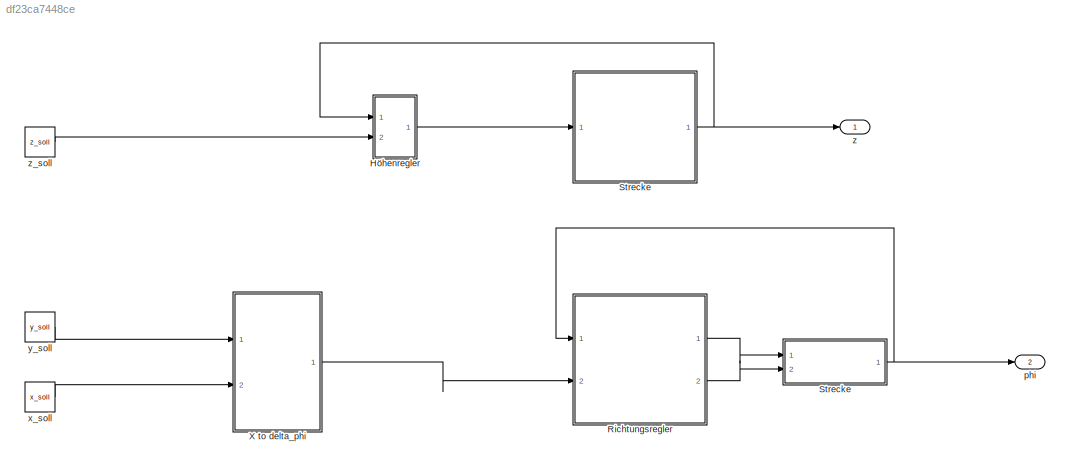
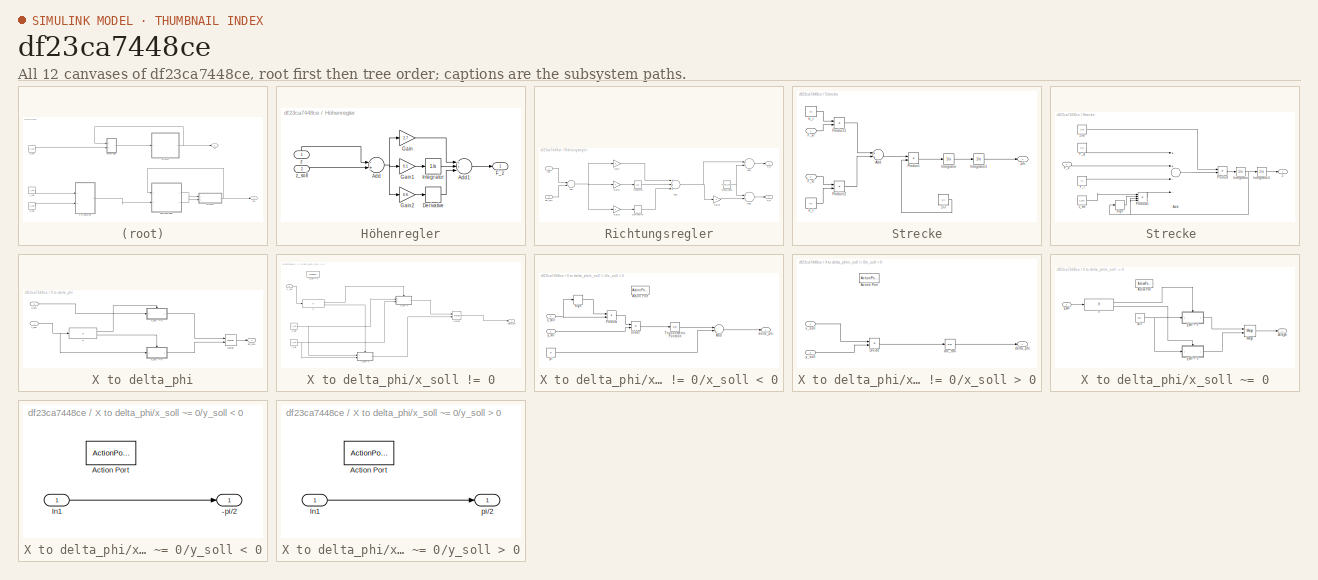
[diagram: thumbnail index - all 12 canvases of the model, root first then tree order]
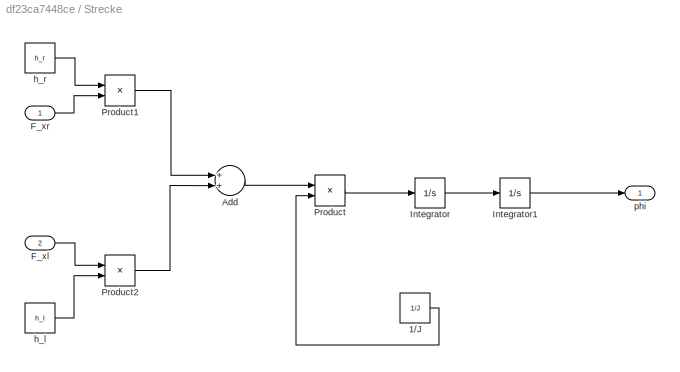
MODEL slx_df23ca7448ce
KIND model
BLOCK [SubSystem] Höhenregler
  Ports = [2, 1]
  RequestExecContextInheritance = off
BLOCK [Sum] Höhenregler/Add
  InputSameDT = off
  Inputs = -+
  OutDataTypeStr = Inherit: Inherit via internal rule
  Ports = [2, 1]
  SaturateOnIntegerOverflow = off
BLOCK [Sum] Höhenregler/Add1
  InputSameDT = off
  Inputs = +++
  OutDataTypeStr = Inherit: Inherit via internal rule
  Ports = [3, 1]
  SaturateOnIntegerOverflow = off
BLOCK [Derivative] Höhenregler/Derivative
BLOCK [Outport] Höhenregler/F_z
  IconDisplay = Port number
BLOCK [Gain] Höhenregler/Gain
  Gain = 2.7
  OutDataTypeStr = Inherit: Inherit via internal rule
  ParamDataTypeStr = Inherit: Inherit via internal rule
  SaturateOnIntegerOverflow = off
BLOCK [Gain] Höhenregler/Gain1
  Gain = 0.1
  OutDataTypeStr = Inherit: Inherit via internal rule
  ParamDataTypeStr = Inherit: Inherit via internal rule
  SaturateOnIntegerOverflow = off
BLOCK [Gain] Höhenregler/Gain2
  Gain = 0.6
  OutDataTypeStr = Inherit: Inherit via internal rule
  ParamDataTypeStr = Inherit: Inherit via internal rule
  SaturateOnIntegerOverflow = off
BLOCK [Integrator] Höhenregler/Integrator
  Ports = [1, 1]
BLOCK [Inport] Höhenregler/z
  IconDisplay = Port number
BLOCK [Inport] Höhenregler/z_soll
  IconDisplay = Port number
  Port = 2
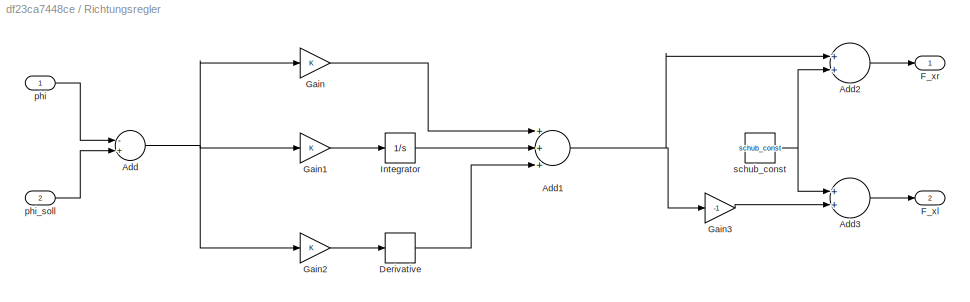
BLOCK [SubSystem] Richtungsregler
  Ports = [2, 2]
  RequestExecContextInheritance = off
BLOCK [Sum] Richtungsregler/Add
  InputSameDT = off
  Inputs = -+
  OutDataTypeStr = Inherit: Inherit via internal rule
  Ports = [2, 1]
  SaturateOnIntegerOverflow = off
BLOCK [Sum] Richtungsregler/Add1
  InputSameDT = off
  Inputs = +++
  OutDataTypeStr = Inherit: Inherit via internal rule
  Ports = [3, 1]
  SaturateOnIntegerOverflow = off
BLOCK [Sum] Richtungsregler/Add2
  InputSameDT = off
  OutDataTypeStr = Inherit: Inherit via internal rule
  Ports = [2, 1]
  SaturateOnIntegerOverflow = off
BLOCK [Sum] Richtungsregler/Add3
  InputSameDT = off
  OutDataTypeStr = Inherit: Inherit via internal rule
  Ports = [2, 1]
  SaturateOnIntegerOverflow = off
BLOCK [Derivative] Richtungsregler/Derivative
BLOCK [Outport] Richtungsregler/F_xl
  IconDisplay = Port number
  Port = 2
BLOCK [Outport] Richtungsregler/F_xr
  IconDisplay = Port number
BLOCK [Gain] Richtungsregler/Gain
  OutDataTypeStr = Inherit: Inherit via internal rule
  ParamDataTypeStr = Inherit: Inherit via internal rule
  SaturateOnIntegerOverflow = off
BLOCK [Gain] Richtungsregler/Gain1
  OutDataTypeStr = Inherit: Inherit via internal rule
  ParamDataTypeStr = Inherit: Inherit via internal rule
  SaturateOnIntegerOverflow = off
BLOCK [Gain] Richtungsregler/Gain2
  OutDataTypeStr = Inherit: Inherit via internal rule
  ParamDataTypeStr = Inherit: Inherit via internal rule
  SaturateOnIntegerOverflow = off
BLOCK [Gain] Richtungsregler/Gain3
  Gain = -1
  OutDataTypeStr = Inherit: Inherit via internal rule
  ParamDataTypeStr = Inherit: Inherit via internal rule
  SaturateOnIntegerOverflow = off
BLOCK [Integrator] Richtungsregler/Integrator
  Ports = [1, 1]
BLOCK [Inport] Richtungsregler/phi
  IconDisplay = Port number
BLOCK [Inport] Richtungsregler/phi_soll
  IconDisplay = Port number
  Port = 2
BLOCK [Constant] Richtungsregler/schub_const
  Value = schub_const
BLOCK [SubSystem] Strecke
  Ports = [2, 1]
  RequestExecContextInheritance = off
BLOCK [SubSystem] Strecke 
  Ports = [1, 1]
  RequestExecContextInheritance = off
BLOCK [Constant] Strecke /1//m
  Value = 1/m
BLOCK [Sum] Strecke /Add
  InputSameDT = off
  Inputs = ++--
  OutDataTypeStr = Inherit: Inherit via internal rule
  Ports = [4, 1]
  SaturateOnIntegerOverflow = off
BLOCK [Constant] Strecke /F_g
  Value = F_g
BLOCK [Constant] Strecke /F_l
  Value = F_l
BLOCK [Inport] Strecke /F_z
  IconDisplay = Port number
BLOCK [Integrator] Strecke /Integrator
  Ports = [1, 1]
BLOCK [Integrator] Strecke /Integrator1
  Ports = [1, 1]
BLOCK [Product] Strecke /Product
  InputSameDT = off
  OutDataTypeStr = Inherit: Inherit via internal rule
  Ports = [2, 1]
  RndMeth = Floor
  SaturateOnIntegerOverflow = off
BLOCK [Product] Strecke /Product1
  InputSameDT = off
  Inputs = 4
  OutDataTypeStr = Inherit: Inherit via internal rule
  Ports = [4, 1]
  RndMeth = Floor
  SaturateOnIntegerOverflow = off
BLOCK [Signum] Strecke /Sign
BLOCK [Constant] Strecke /c_we
  Value = c_we
BLOCK [Outport] Strecke /z
  IconDisplay = Port number
BLOCK [Constant] Strecke/1//J
  Value = 1/J
BLOCK [Sum] Strecke/Add
  InputSameDT = off
  OutDataTypeStr = Inherit: Inherit via internal rule
  Ports = [2, 1]
  SaturateOnIntegerOverflow = off
BLOCK [Inport] Strecke/F_xl
  IconDisplay = Port number
  Port = 2
BLOCK [Inport] Strecke/F_xr
  IconDisplay = Port number
BLOCK [Integrator] Strecke/Integrator
  Ports = [1, 1]
BLOCK [Integrator] Strecke/Integrator1
  Ports = [1, 1]
BLOCK [Product] Strecke/Product
  InputSameDT = off
  OutDataTypeStr = Inherit: Inherit via internal rule
  Ports = [2, 1]
  RndMeth = Floor
  SaturateOnIntegerOverflow = off
BLOCK [Product] Strecke/Product1
  InputSameDT = off
  OutDataTypeStr = Inherit: Inherit via internal rule
  Ports = [2, 1]
  RndMeth = Floor
  SaturateOnIntegerOverflow = off
BLOCK [Product] Strecke/Product2
  InputSameDT = off
  OutDataTypeStr = Inherit: Inherit via internal rule
  Ports = [2, 1]
  RndMeth = Floor
  SaturateOnIntegerOverflow = off
BLOCK [Constant] Strecke/h_l
  Value = h_l
BLOCK [Constant] Strecke/h_r
  Value = h_r
BLOCK [Outport] Strecke/phi
  IconDisplay = Port number
BLOCK [SubSystem] X to delta_phi
  Ports = [2, 1]
  RequestExecContextInheritance = off
BLOCK [If] X to delta_phi/If
  IfExpression = u1 ~= 0
  Ports = [1, 2]
BLOCK [Merge] X to delta_phi/Merge
  Ports = [2, 1]
BLOCK [Outport] X to delta_phi/phi_soll
  IconDisplay = Port number
BLOCK [Inport] X to delta_phi/x_soll
  IconDisplay = Port number
  Port = 2
BLOCK [SubSystem] X to delta_phi/x_soll != 0
  Ports = [1, 1, 0, 0, 0, 0, 0, 1]
  RequestExecContextInheritance = off
  TreatAsAtomicUnit = on
BLOCK [If] X to delta_phi/x_soll != 0/If
  Ports = [1, 2]
BLOCK [Merge] X to delta_phi/x_soll != 0/Merge
  Ports = [2, 1]
BLOCK [Outport] X to delta_phi/x_soll != 0/delta_phi
  IconDisplay = Port number
BLOCK [Inport] X to delta_phi/x_soll != 0/x:_soll
  IconDisplay = Port number
BLOCK [Constant] X to delta_phi/x_soll != 0/x_soll 
  Value = x_soll
BLOCK [SubSystem] X to delta_phi/x_soll != 0/x_soll < 0
  Ports = [2, 1, 0, 0, 0, 0, 0, 1]
  RequestExecContextInheritance = off
  TreatAsAtomicUnit = on
BLOCK [ActionPort] X to delta_phi/x_soll != 0/x_soll < 0/Action Port
  ActionType = else
BLOCK [Sum] X to delta_phi/x_soll != 0/x_soll < 0/Add
  InputSameDT = off
  Inputs = -+
  OutDataTypeStr = Inherit: Inherit via internal rule
  Ports = [2, 1]
  SaturateOnIntegerOverflow = off
BLOCK [Product] X to delta_phi/x_soll != 0/x_soll < 0/Divide
  InputSameDT = off
  Inputs = /*
  OutDataTypeStr = Inherit: Inherit via internal rule
  Ports = [2, 1]
  RndMeth = Floor
  SaturateOnIntegerOverflow = off
BLOCK [Product] X to delta_phi/x_soll != 0/x_soll < 0/Product
  InputSameDT = off
  Inputs = **
  OutDataTypeStr = Inherit: Inherit via internal rule
  Ports = [2, 1]
  RndMeth = Floor
  SaturateOnIntegerOverflow = off
BLOCK [Signum] X to delta_phi/x_soll != 0/x_soll < 0/Sign
BLOCK [Trigonometry] X to delta_phi/x_soll != 0/x_soll < 0/Trigonometric Function
  Operator = atan
  Ports = [1, 1]
BLOCK [Outport] X to delta_phi/x_soll != 0/x_soll < 0/delta_phi
  IconDisplay = Port number
BLOCK [Constant] X to delta_phi/x_soll != 0/x_soll < 0/pi
  Value = pi
BLOCK [Inport] X to delta_phi/x_soll != 0/x_soll < 0/x_soll
  IconDisplay = Port number
BLOCK [Inport] X to delta_phi/x_soll != 0/x_soll < 0/y_sol
  IconDisplay = Port number
  Port = 2
BLOCK [SubSystem] X to delta_phi/x_soll != 0/x_soll > 0
  Ports = [2, 1, 0, 0, 0, 0, 0, 1]
  RequestExecContextInheritance = off
  TreatAsAtomicUnit = on
BLOCK [ActionPort] X to delta_phi/x_soll != 0/x_soll > 0/Action Port
  ActionType = then
BLOCK [Product] X to delta_phi/x_soll != 0/x_soll > 0/Divide
  InputSameDT = off
  Inputs = /*
  OutDataTypeStr = Inherit: Inherit via internal rule
  Ports = [2, 1]
  RndMeth = Floor
  SaturateOnIntegerOverflow = off
BLOCK [Trigonometry] X to delta_phi/x_soll != 0/x_soll > 0/arc_tan
  Operator = atan
  Ports = [1, 1]
BLOCK [Outport] X to delta_phi/x_soll != 0/x_soll > 0/delta_phi
  IconDisplay = Port number
BLOCK [Inport] X to delta_phi/x_soll != 0/x_soll > 0/x_soll 
  IconDisplay = Port number
BLOCK [Inport] X to delta_phi/x_soll != 0/x_soll > 0/y_soll
  IconDisplay = Port number
  Port = 2
BLOCK [ActionPort] X to delta_phi/x_soll != 0/x_soll ~= 0
  ActionType = else
BLOCK [Constant] X to delta_phi/x_soll != 0/y_soll
  Value = y_soll
BLOCK [SubSystem] X to delta_phi/x_soll ~= 0
  Ports = [1, 1, 0, 0, 0, 0, 0, 1]
  RequestExecContextInheritance = off
  TreatAsAtomicUnit = on
BLOCK [ActionPort] X to delta_phi/x_soll ~= 0/Action Port
  ActionType = then
BLOCK [If] X to delta_phi/x_soll ~= 0/If
  Ports = [1, 2]
BLOCK [Merge] X to delta_phi/x_soll ~= 0/Merge
  Ports = [2, 1]
BLOCK [Outport] X to delta_phi/x_soll ~= 0/delta_phi
  IconDisplay = Port number
BLOCK [Constant] X to delta_phi/x_soll ~= 0/pi//2
  Value = pi/2
BLOCK [Inport] X to delta_phi/x_soll ~= 0/y_soll
  IconDisplay = Port number
BLOCK [SubSystem] X to delta_phi/x_soll ~= 0/y_soll < 0
  Ports = [1, 1, 0, 0, 0, 0, 0, 1]
  RequestExecContextInheritance = off
  TreatAsAtomicUnit = on
BLOCK [Outport] X to delta_phi/x_soll ~= 0/y_soll < 0/-pi//2
  IconDisplay = Port number
BLOCK [ActionPort] X to delta_phi/x_soll ~= 0/y_soll < 0/Action Port
  ActionType = else
BLOCK [Inport] X to delta_phi/x_soll ~= 0/y_soll < 0/In1
  IconDisplay = Port number
BLOCK [SubSystem] X to delta_phi/x_soll ~= 0/y_soll > 0
  Ports = [1, 1, 0, 0, 0, 0, 0, 1]
  RequestExecContextInheritance = off
  TreatAsAtomicUnit = on
BLOCK [ActionPort] X to delta_phi/x_soll ~= 0/y_soll > 0/Action Port
  ActionType = then
BLOCK [Inport] X to delta_phi/x_soll ~= 0/y_soll > 0/In1
  IconDisplay = Port number
BLOCK [Outport] X to delta_phi/x_soll ~= 0/y_soll > 0/pi//2
  IconDisplay = Port number
BLOCK [Inport] X to delta_phi/y_soll
  IconDisplay = Port number
BLOCK [Outport] phi
  IconDisplay = Port number
  Port = 2
BLOCK [Constant] x_soll
  Value = x_soll
BLOCK [Constant] y_soll
  Value = y_soll
BLOCK [Outport] z
  IconDisplay = Port number
BLOCK [Constant] z_soll
  Value = z_soll
LINE Höhenregler/Add1:1 -> Höhenregler/F_z:1
NET Höhenregler/Add:1 -> Höhenregler/Gain1:1, Höhenregler/Gain2:1, Höhenregler/Gain:1
LINE Höhenregler/Derivative:1 -> Höhenregler/Add1:3
LINE Höhenregler/Gain1:1 -> Höhenregler/Integrator:1
LINE Höhenregler/Gain2:1 -> Höhenregler/Derivative:1
LINE Höhenregler/Gain:1 -> Höhenregler/Add1:1
LINE Höhenregler/Integrator:1 -> Höhenregler/Add1:2
LINE Höhenregler/z:1 -> Höhenregler/Add:1
LINE Höhenregler/z_soll:1 -> Höhenregler/Add:2
LINE Höhenregler:1 -> Strecke :1
NET Richtungsregler/Add1:1 -> Richtungsregler/Add2:1, Richtungsregler/Gain3:1
LINE Richtungsregler/Add2:1 -> Richtungsregler/F_xr:1
LINE Richtungsregler/Add3:1 -> Richtungsregler/F_xl:1
NET Richtungsregler/Add:1 -> Richtungsregler/Gain1:1, Richtungsregler/Gain2:1, Richtungsregler/Gain:1
LINE Richtungsregler/Derivative:1 -> Richtungsregler/Add1:3
LINE Richtungsregler/Gain1:1 -> Richtungsregler/Integrator:1
LINE Richtungsregler/Gain2:1 -> Richtungsregler/Derivative:1
LINE Richtungsregler/Gain3:1 -> Richtungsregler/Add3:2
LINE Richtungsregler/Gain:1 -> Richtungsregler/Add1:1
LINE Richtungsregler/Integrator:1 -> Richtungsregler/Add1:2
LINE Richtungsregler/phi:1 -> Richtungsregler/Add:1
LINE Richtungsregler/phi_soll:1 -> Richtungsregler/Add:2
NET Richtungsregler/schub_const:1 -> Richtungsregler/Add2:2, Richtungsregler/Add3:1
LINE Richtungsregler:1 -> Strecke:1
LINE Richtungsregler:2 -> Strecke:2
LINE Strecke /1//m:1 -> Strecke /Product:1
LINE Strecke /Add:1 -> Strecke /Product:2
LINE Strecke /F_g:1 -> Strecke /Add:1
LINE Strecke /F_l:1 -> Strecke /Add:3
LINE Strecke /F_z:1 -> Strecke /Add:2
LINE Strecke /Integrator1:1 -> Strecke /z:1
NET Strecke /Integrator:1 -> Strecke /Integrator1:1, Strecke /Product1:3, Strecke /Product1:4, Strecke /Sign:1
LINE Strecke /Product1:1 -> Strecke /Add:4
LINE Strecke /Product:1 -> Strecke /Integrator:1
LINE Strecke /Sign:1 -> Strecke /Product1:2
LINE Strecke /c_we:1 -> Strecke /Product1:1
NET Strecke :1 -> Höhenregler:1, z:1
LINE Strecke/1//J:1 -> Strecke/Product:2
LINE Strecke/Add:1 -> Strecke/Product:1
LINE Strecke/F_xl:1 -> Strecke/Product2:1
LINE Strecke/F_xr:1 -> Strecke/Product1:2
LINE Strecke/Integrator1:1 -> Strecke/phi:1
LINE Strecke/Integrator:1 -> Strecke/Integrator1:1
LINE Strecke/Product1:1 -> Strecke/Add:1
LINE Strecke/Product2:1 -> Strecke/Add:2
LINE Strecke/Product:1 -> Strecke/Integrator:1
LINE Strecke/h_l:1 -> Strecke/Product2:2
LINE Strecke/h_r:1 -> Strecke/Product1:1
NET Strecke:1 -> Richtungsregler:1, phi:1
LINE X to delta_phi/If:1 -> X to delta_phi/x_soll ~= 0:ifaction
LINE X to delta_phi/If:2 -> X to delta_phi/x_soll != 0:ifaction
LINE X to delta_phi/Merge:1 -> X to delta_phi/phi_soll:1
LINE X to delta_phi/x_soll != 0/If:1 -> X to delta_phi/x_soll != 0/x_soll > 0:ifaction
LINE X to delta_phi/x_soll != 0/If:2 -> X to delta_phi/x_soll != 0/x_soll < 0:ifaction
LINE X to delta_phi/x_soll != 0/Merge:1 -> X to delta_phi/x_soll != 0/delta_phi:1
LINE X to delta_phi/x_soll != 0/x:_soll:1 -> X to delta_phi/x_soll != 0/If:1
NET X to delta_phi/x_soll != 0/x_soll :1 -> X to delta_phi/x_soll != 0/x_soll < 0:1, X to delta_phi/x_soll != 0/x_soll > 0:1
LINE X to delta_phi/x_soll != 0/x_soll < 0/Add:1 -> X to delta_phi/x_soll != 0/x_soll < 0/delta_phi:1
LINE X to delta_phi/x_soll != 0/x_soll < 0/Divide:1 -> X to delta_phi/x_soll != 0/x_soll < 0/Trigonometric Function:1
LINE X to delta_phi/x_soll != 0/x_soll < 0/Product:1 -> X to delta_phi/x_soll != 0/x_soll < 0/Divide:1
LINE X to delta_phi/x_soll != 0/x_soll < 0/Sign:1 -> X to delta_phi/x_soll != 0/x_soll < 0/Product:1
LINE X to delta_phi/x_soll != 0/x_soll < 0/Trigonometric Function:1 -> X to delta_phi/x_soll != 0/x_soll < 0/Add:1
LINE X to delta_phi/x_soll != 0/x_soll < 0/pi:1 -> X to delta_phi/x_soll != 0/x_soll < 0/Add:2
NET X to delta_phi/x_soll != 0/x_soll < 0/x_soll:1 -> X to delta_phi/x_soll != 0/x_soll < 0/Product:2, X to delta_phi/x_soll != 0/x_soll < 0/Sign:1
LINE X to delta_phi/x_soll != 0/x_soll < 0/y_sol:1 -> X to delta_phi/x_soll != 0/x_soll < 0/Divide:2
LINE X to delta_phi/x_soll != 0/x_soll < 0:1 -> X to delta_phi/x_soll != 0/Merge:2
LINE X to delta_phi/x_soll != 0/x_soll > 0/Divide:1 -> X to delta_phi/x_soll != 0/x_soll > 0/arc_tan:1
LINE X to delta_phi/x_soll != 0/x_soll > 0/arc_tan:1 -> X to delta_phi/x_soll != 0/x_soll > 0/delta_phi:1
LINE X to delta_phi/x_soll != 0/x_soll > 0/x_soll :1 -> X to delta_phi/x_soll != 0/x_soll > 0/Divide:1
LINE X to delta_phi/x_soll != 0/x_soll > 0/y_soll:1 -> X to delta_phi/x_soll != 0/x_soll > 0/Divide:2
LINE X to delta_phi/x_soll != 0/x_soll > 0:1 -> X to delta_phi/x_soll != 0/Merge:1
NET X to delta_phi/x_soll != 0/y_soll:1 -> X to delta_phi/x_soll != 0/x_soll < 0:2, X to delta_phi/x_soll != 0/x_soll > 0:2
LINE X to delta_phi/x_soll != 0:1 -> X to delta_phi/Merge:2
LINE X to delta_phi/x_soll ~= 0/If:1 -> X to delta_phi/x_soll ~= 0/y_soll > 0:ifaction
LINE X to delta_phi/x_soll ~= 0/If:2 -> X to delta_phi/x_soll ~= 0/y_soll < 0:ifaction
LINE X to delta_phi/x_soll ~= 0/Merge:1 -> X to delta_phi/x_soll ~= 0/delta_phi:1
NET X to delta_phi/x_soll ~= 0/pi//2:1 -> X to delta_phi/x_soll ~= 0/y_soll < 0:1, X to delta_phi/x_soll ~= 0/y_soll > 0:1
LINE X to delta_phi/x_soll ~= 0/y_soll < 0/In1:1 -> X to delta_phi/x_soll ~= 0/y_soll < 0/-pi//2:1
LINE X to delta_phi/x_soll ~= 0/y_soll < 0:1 -> X to delta_phi/x_soll ~= 0/Merge:2
LINE X to delta_phi/x_soll ~= 0/y_soll > 0/In1:1 -> X to delta_phi/x_soll ~= 0/y_soll > 0/pi//2:1
LINE X to delta_phi/x_soll ~= 0/y_soll > 0:1 -> X to delta_phi/x_soll ~= 0/Merge:1
LINE X to delta_phi/x_soll ~= 0/y_soll:1 -> X to delta_phi/x_soll ~= 0/If:1
LINE X to delta_phi/x_soll ~= 0:1 -> X to delta_phi/Merge:1
LINE X to delta_phi/x_soll:1 -> X to delta_phi/x_soll ~= 0:1
NET X to delta_phi/y_soll:1 -> X to delta_phi/If:1, X to delta_phi/x_soll != 0:1
LINE X to delta_phi:1 -> Richtungsregler:2
LINE x_soll:1 -> X to delta_phi:2
LINE y_soll:1 -> X to delta_phi:1
LINE z_soll:1 -> Höhenregler:2
note: NET lines group one-source signal fan-out (src -> all destinations, sorted); 1:1 wires keep LINE
